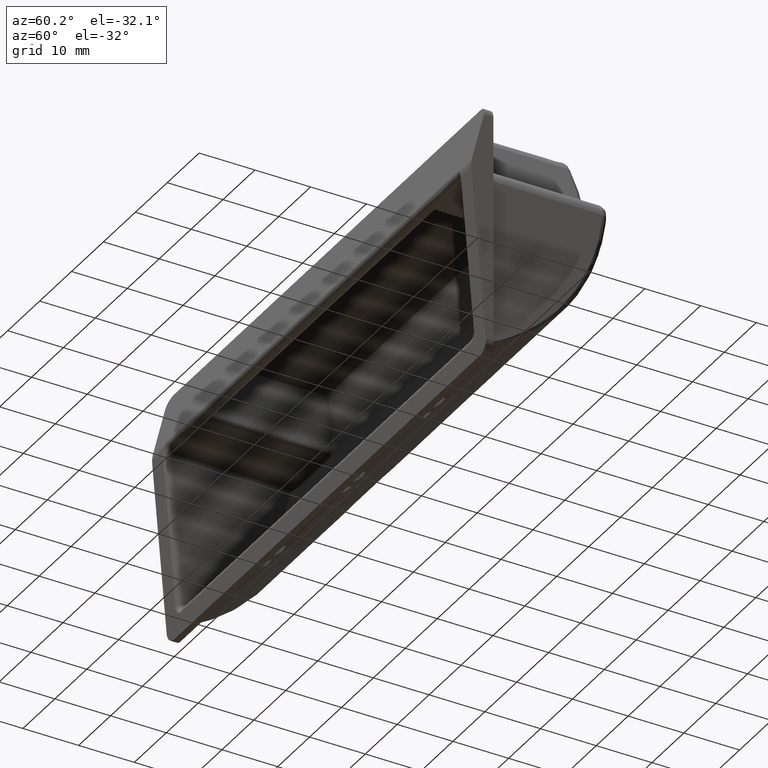
[diagram: clean part render]
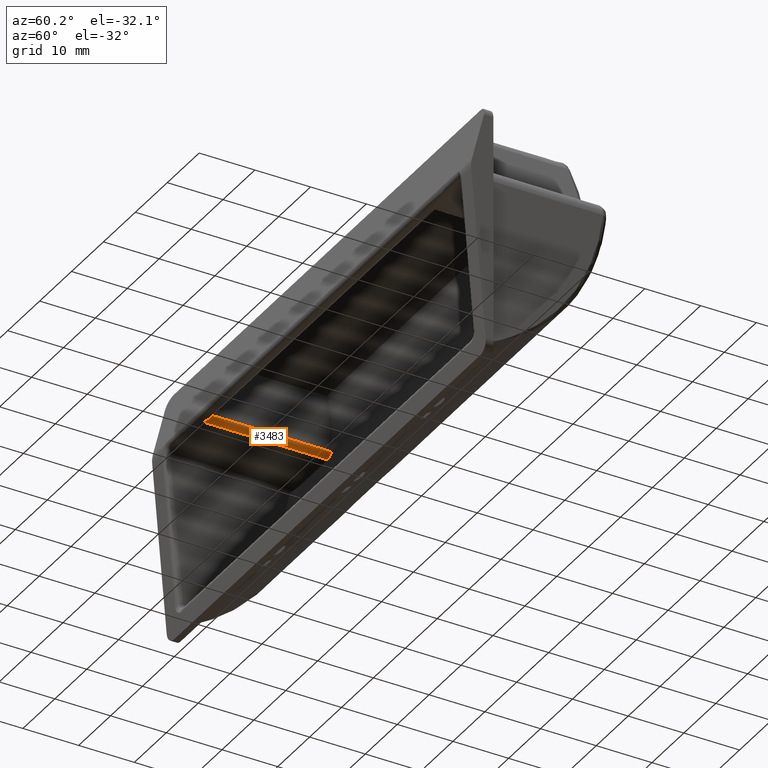
[diagram: same view with one face highlighted and labeled with its STEP entity id]
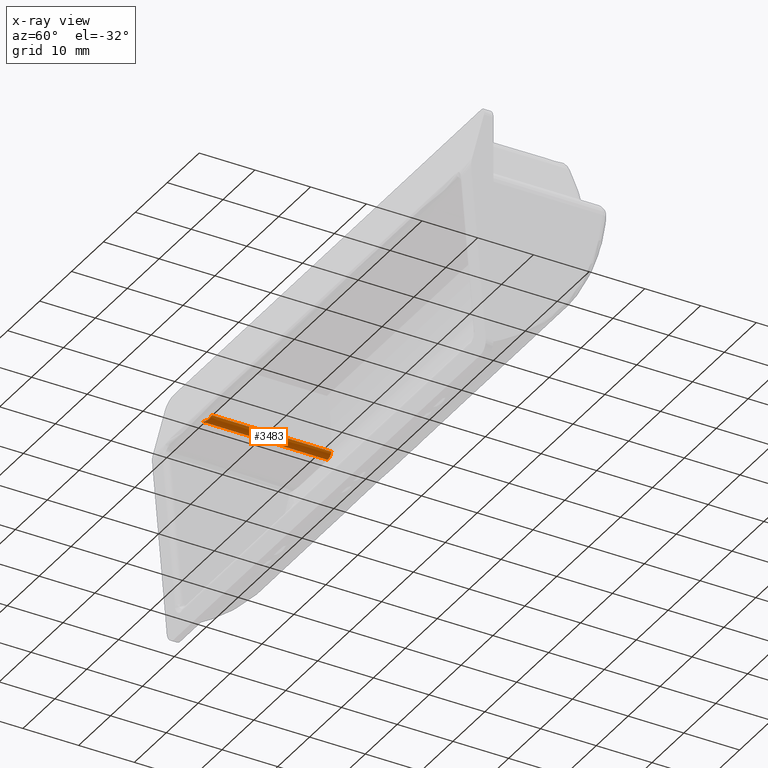
[diagram: x-ray of the same camera — body ghosted, the highlighted face saturated]
A machine part, auxiliary view. The second image highlights one B-rep face of the part: STEP entity #3483.
The next image is the same camera in x-ray: the body ghosted, the highlighted face saturated — about 0% of this face is hidden behind the body in this view.
In plain terms, the highlighted face is a freeform B-spline surface patch.
Its self-contained STEP definition (entity closure, byte-faithful):
#2299=CARTESIAN_POINT('',(-36.069924016522997,19.567418078112901,9.751254589057250));
#2300=VERTEX_POINT('',#2299);
#2306=CARTESIAN_POINT('',(-36.119999999999997,19.567297032687200,9.749999999999799));
#2307=VERTEX_POINT('',#2306);
#2308=CARTESIAN_POINT('',(-36.069924016522997,19.567418078112901,9.751254589057250));
#2309=CARTESIAN_POINT('',(-36.086570076629990,19.567337617777390,9.750420711950905));
#2310=CARTESIAN_POINT('',(-36.103262044570883,19.567297186539410,9.750002281050952));
#2311=CARTESIAN_POINT('',(-36.119999999999997,19.567297032687200,9.749999999999799));
#2312=B_SPLINE_CURVE_WITH_KNOTS('',3,(#2308,#2309,#2310,#2311),.UNSPECIFIED.,.F.,.U.,(4,4),(0.968365359256593,1.0),.UNSPECIFIED.);
#2313=EDGE_CURVE('',#2300,#2307,#2312,.T.);
#3121=CARTESIAN_POINT('',(-36.119999999999997,-2.873266208455160,9.749999999999799));
#3122=VERTEX_POINT('',#3121);
#3128=CARTESIAN_POINT('',(-36.107530893791903,-2.885735314671165,9.750077742326649));
#3129=VERTEX_POINT('',#3128);
#3130=CARTESIAN_POINT('',(-36.107530893791903,-2.885735314671165,9.750077742326649));
#3131=CARTESIAN_POINT('',(-36.113765204538161,-2.879501003916991,9.749999999999801));
#3132=CARTESIAN_POINT('',(-36.119999999999997,-2.873266208455160,9.749999999999801));
#3140=(BOUNDED_CURVE()B_SPLINE_CURVE(2,(#3130,#3131,#3132),.UNSPECIFIED.,.F.,.U.)CURVE()GEOMETRIC_REPRESENTATION_ITEM()QUASI_UNIFORM_CURVE()RATIONAL_B_SPLINE_CURVE((1.0,0.999980564238370,1.0))REPRESENTATION_ITEM(''));
#3141=EDGE_CURVE('',#3129,#3122,#3140,.T.);
#3397=CARTESIAN_POINT('',(-36.146176948307883,-3.449105985638325,9.750342675024243));
#3398=CARTESIAN_POINT('',(-36.146176948307883,20.226546461756541,9.750342675024243));
#3399=CARTESIAN_POINT('',(-35.055242411405878,-3.449105985638324,9.721775548803805));
#3400=CARTESIAN_POINT('',(-35.055242411405878,20.226546461756538,9.721775548803805));
#3401=CARTESIAN_POINT('',(-35.121865201578132,-3.449105985638325,10.811048539534649));
#3402=CARTESIAN_POINT('',(-35.121865201578132,20.226546461756541,10.811048539534649));
#3410=(BOUNDED_SURFACE()B_SPLINE_SURFACE(1,2,((#3397,#3399,#3401),(#3398,#3400,#3402)),.UNSPECIFIED.,.F.,.F.,.U.)B_SPLINE_SURFACE_WITH_KNOTS((2,2),(3,3),(0.0,23.675652447394871),(0.0,1.0),.UNSPECIFIED.)GEOMETRIC_REPRESENTATION_ITEM()RATIONAL_B_SPLINE_SURFACE(((1.0,0.675590207615660,1.0),(1.0,0.675590207615660,1.0)))REPRESENTATION_ITEM('')SURFACE());
#3411=CARTESIAN_POINT('',(-35.243527086930150,-2.021731507809545,10.268548826302100));
#3412=VERTEX_POINT('',#3411);
#3413=CARTESIAN_POINT('',(-36.107530893791903,-2.885735314671166,9.750077742326749));
#3414=CARTESIAN_POINT('',(-35.524331128695636,-2.302535549574907,9.757350287522858));
#3415=CARTESIAN_POINT('',(-35.243527086930150,-2.021731507809545,10.268548826302100));
#3423=(BOUNDED_CURVE()B_SPLINE_CURVE(2,(#3413,#3414,#3415),.UNSPECIFIED.,.F.,.U.)CURVE()GEOMETRIC_REPRESENTATION_ITEM()QUASI_UNIFORM_CURVE()RATIONAL_B_SPLINE_CURVE((1.0,0.863812068219964,1.0))REPRESENTATION_ITEM(''));
#3424=EDGE_CURVE('',#3129,#3412,#3423,.T.);
#3425=ORIENTED_EDGE('',*,*,#3424,.F.);
#3426=ORIENTED_EDGE('',*,*,#3141,.T.);
#3427=CARTESIAN_POINT('',(-36.119999999999997,19.567297032687200,9.749999999999799));
#3428=CARTESIAN_POINT('',(-36.119999999999997,-2.873266208455160,9.749999999999799));
#3429=QUASI_UNIFORM_CURVE('',1,(#3427,#3428),.UNSPECIFIED.,.F.,.U.);
#3430=EDGE_CURVE('',#2307,#3122,#3429,.T.);
#3431=ORIENTED_EDGE('',*,*,#3430,.F.);
#3432=ORIENTED_EDGE('',*,*,#2313,.F.);
#3433=CARTESIAN_POINT('',(-35.119999999999997,19.649091524015201,10.749999999999799));
#3434=VERTEX_POINT('',#3433);
#3435=CARTESIAN_POINT('',(-35.119999999999997,19.649091524015201,10.749999999999799));
#3436=CARTESIAN_POINT('',(-35.120000011933897,19.644662439104501,10.684015796935739));
#3437=CARTESIAN_POINT('',(-35.126466806146212,19.640116950720898,10.619144042726260));
#3438=CARTESIAN_POINT('',(-35.145461466701342,19.633146762763740,10.523434188653029));
#3439=CARTESIAN_POINT('',(-35.153353620801560,19.630798146576609,10.491799159768419));
#3440=CARTESIAN_POINT('',(-35.172328621177250,19.626055798316969,10.429077094490291));
#3441=CARTESIAN_POINT('',(-35.183467820668859,19.623654262587490,10.397895851487430));
#3442=CARTESIAN_POINT('',(-35.221006612512767,19.616548058878969,10.307175936127960));
#3443=CARTESIAN_POINT('',(-35.251634933868232,19.611893407564541,10.249803137520511));
#3444=CARTESIAN_POINT('',(-35.323994055115527,19.602837969680088,10.141207731559110));
#3445=CARTESIAN_POINT('',(-35.366132855316089,19.598414068289170,10.089750710896100));
#3446=CARTESIAN_POINT('',(-35.458227481268253,19.590306988330369,9.997470697823907));
#3447=CARTESIAN_POINT('',(-35.508482962506683,19.586574973341531,9.956050122425680));
#3448=CARTESIAN_POINT('',(-35.590332280216757,19.581552464323838,9.901163707846697));
#3449=CARTESIAN_POINT('',(-35.618731221505627,19.579975565445999,9.884093970946418));
#3450=CARTESIAN_POINT('',(-35.676452398798489,19.577098233776990,9.853156463512800));
#3451=CARTESIAN_POINT('',(-35.735399519936337,19.574477469248620,9.825202535620431));
#3452=CARTESIAN_POINT('',(-35.796761201570220,19.572383015401488,9.803122952154689));
#3453=CARTESIAN_POINT('',(-35.859346483924327,19.570564042673212,9.784019423085566));
#3454=CARTESIAN_POINT('',(-35.891381251798961,19.569789938651919,9.775931178512700));
#3455=CARTESIAN_POINT('',(-35.972066023310063,19.568240763277728,9.759781777130524));
#3456=CARTESIAN_POINT('',(-36.020795077840042,19.567655081880488,9.753708784773755));
#3457=CARTESIAN_POINT('',(-36.069924016522997,19.567418078112901,9.751254589057250));
#3458=B_SPLINE_CURVE_WITH_KNOTS('',3,(#3435,#3436,#3437,#3438,#3439,#3440,#3441,#3442,#3443,#3444,#3445,#3446,#3447,#3448,#3449,#3450,#3451,#3452,#3453,#3454,#3455,#3456,#3457),.UNSPECIFIED.,.F.,.U.,(4,2,2,2,2,2,2,2,1,2,2,4),(0.0,0.124999999999996,0.187499999999992,0.249999999999989,0.374999999999990,0.499999999999991,0.624999999999992,0.687499999999993,0.749999999999995,0.812499999999996,0.874999999999997,0.968365359256593),.UNSPECIFIED.);
#3459=EDGE_CURVE('',#3434,#2300,#3458,.T.);
#3460=ORIENTED_EDGE('',*,*,#3459,.F.);
#3461=CARTESIAN_POINT('',(-35.119999999999997,-1.757267849893235,10.749999999999799));
#3462=VERTEX_POINT('',#3461);
#3463=CARTESIAN_POINT('',(-35.119999999999997,-1.757267849893235,10.749999999999799));
#3464=CARTESIAN_POINT('',(-35.119999999999997,19.649091524015201,10.749999999999799));
#3465=QUASI_UNIFORM_CURVE('',1,(#3463,#3464),.UNSPECIFIED.,.F.,.U.);
#3466=EDGE_CURVE('',#3462,#3434,#3465,.T.);
#3467=ORIENTED_EDGE('',*,*,#3466,.F.);
#3468=CARTESIAN_POINT('',(-35.243527086930172,-2.021731507809549,10.268548826302100));
#3469=CARTESIAN_POINT('',(-35.119999999999997,-1.898204420879311,10.493427592082620));
#3470=CARTESIAN_POINT('',(-35.119999999999997,-1.757267849893235,10.749999999999799));
#3478=(BOUNDED_CURVE()B_SPLINE_CURVE(2,(#3468,#3469,#3470),.UNSPECIFIED.,.F.,.U.)CURVE()GEOMETRIC_REPRESENTATION_ITEM()QUASI_UNIFORM_CURVE()RATIONAL_B_SPLINE_CURVE((1.0,0.968626066413099,1.0))REPRESENTATION_ITEM(''));
#3479=EDGE_CURVE('',#3412,#3462,#3478,.T.);
#3480=ORIENTED_EDGE('',*,*,#3479,.F.);
#3481=EDGE_LOOP('',(#3425,#3426,#3431,#3432,#3460,#3467,#3480));
#3482=FACE_OUTER_BOUND('',#3481,.T.);
#3483=ADVANCED_FACE('',(#3482),#3410,.T.);